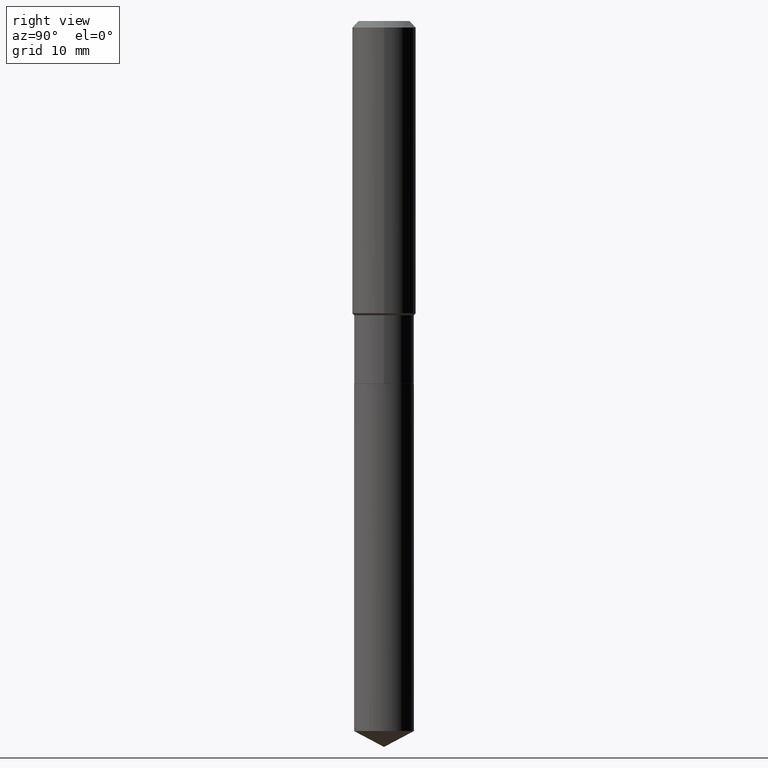
[diagram: clean part render]
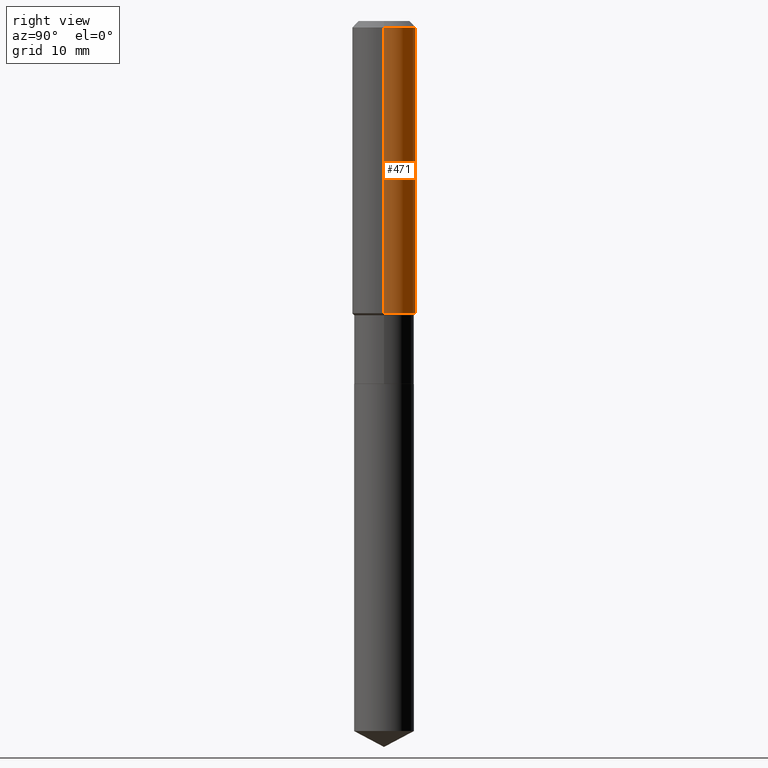
[diagram: same view with one face highlighted and labeled with its STEP entity id]
A machine part, right view. The second image highlights one B-rep face of the part: STEP entity #471.
In plain terms, the highlighted cylindrical surface (edge-blend (fillet) strip) has radius 4.0005 mm, axis along (-0, 0, 1).
Its self-contained STEP definition (entity closure, byte-faithful):
#2 = VERTEX_POINT ( 'NONE', #211 ) ;
#13 = DIRECTION ( 'NONE',  ( 1.000000000000000000, -6.982962677686265922E-15, 0.000000000000000000 ) ) ;
#33 = AXIS2_PLACEMENT_3D ( 'NONE', #129, #366, #13 ) ;
#44 = CARTESIAN_POINT ( 'NONE',  ( -0.1575000000000000011, -1.453156780537057804E-15, -0.03150000000000019451 ) ) ;
#46 = VERTEX_POINT ( 'NONE', #191 ) ;
#71 = FACE_OUTER_BOUND ( 'NONE', #157, .T. ) ;
#83 = ORIENTED_EDGE ( 'NONE', *, *, #195, .T. ) ;
#109 = VERTEX_POINT ( 'NONE', #122 ) ;
#116 = EDGE_CURVE ( 'NONE', #2, #207, #264, .T. ) ;
#117 = ORIENTED_EDGE ( 'NONE', *, *, #153, .T. ) ;
#122 = CARTESIAN_POINT ( 'NONE',  ( 0.1575000000000001676, -6.134358138280461598E-15, -1.441949999999999843 ) ) ;
#129 = CARTESIAN_POINT ( 'NONE',  ( 7.703226739483228723E-31, -1.099816621735597661E-16, -0.03150000000000019451 ) ) ;
#133 = CARTESIAN_POINT ( 'NONE',  ( 0.1575000000000000844, -1.099816621735587677E-15, 7.679978421878603638E-30 ) ) ;
#139 = LINE ( 'NONE', #133, #392 ) ;
#153 = EDGE_CURVE ( 'NONE', #46, #207, #237, .T. ) ;
#157 = EDGE_LOOP ( 'NONE', ( #83, #117, #247, #235 ) ) ;
#158 = CIRCLE ( 'NONE', #409, 0.1575000000000001676 ) ;
#191 = CARTESIAN_POINT ( 'NONE',  ( -0.1575000000000001676, -3.915436707722714937E-15, -1.441949999999999843 ) ) ;
#195 = EDGE_CURVE ( 'NONE', #109, #46, #158, .T. ) ;
#207 = VERTEX_POINT ( 'NONE', #44 ) ;
#211 = CARTESIAN_POINT ( 'NONE',  ( 0.1575000000000000011, -1.209798283909146741E-15, -0.03150000000000019451 ) ) ;
#235 = ORIENTED_EDGE ( 'NONE', *, *, #259, .F. ) ;
#237 = LINE ( 'NONE', #289, #468 ) ;
#246 = CARTESIAN_POINT ( 'NONE',  ( 3.526243745078657437E-29, -5.034541516544873329E-15, -1.441949999999999843 ) ) ;
#247 = ORIENTED_EDGE ( 'NONE', *, *, #116, .F. ) ;
#253 = DIRECTION ( 'NONE',  ( -2.445468806185136597E-29, 3.491481338843145583E-15, 1.000000000000000000 ) ) ;
#259 = EDGE_CURVE ( 'NONE', #109, #2, #139, .T. ) ;
#264 = CIRCLE ( 'NONE', #33, 0.1575000000000000011 ) ;
#289 = CARTESIAN_POINT ( 'NONE',  ( -0.1575000000000000844, 1.119104808822158392E-15, -7.747322767151481189E-30 ) ) ;
#293 = DIRECTION ( 'NONE',  ( -2.445468806185136877E-29, 3.491481338843145188E-15, 1.000000000000000000 ) ) ;
#298 = CARTESIAN_POINT ( 'NONE',  ( 0.000000000000000000, 0.000000000000000000, 0.000000000000000000 ) ) ;
#302 = AXIS2_PLACEMENT_3D ( 'NONE', #298, #253, #376 ) ;
#366 = DIRECTION ( 'NONE',  ( -2.445468806185136597E-29, 3.491481338843145583E-15, 1.000000000000000000 ) ) ;
#376 = DIRECTION ( 'NONE',  ( 1.000000000000000000, -6.982962677686267499E-15, 4.876176775795936353E-29 ) ) ;
#385 = DIRECTION ( 'NONE',  ( -2.445468806185136877E-29, 3.491481338843145188E-15, 1.000000000000000000 ) ) ;
#387 = DIRECTION ( 'NONE',  ( 1.000000000000000000, -6.982962677686267499E-15, 0.000000000000000000 ) ) ;
#392 = VECTOR ( 'NONE', #293, 39.37007874015748143 ) ;
#409 = AXIS2_PLACEMENT_3D ( 'NONE', #246, #464, #387 ) ;
#435 = CYLINDRICAL_SURFACE ( 'NONE', #302, 0.1575000000000000844 ) ;
#464 = DIRECTION ( 'NONE',  ( -2.445468806185136597E-29, 3.491481338843145583E-15, 1.000000000000000000 ) ) ;
#468 = VECTOR ( 'NONE', #385, 39.37007874015748143 ) ;
#471 = ADVANCED_FACE ( 'NONE', ( #71 ), #435, .T. ) ;